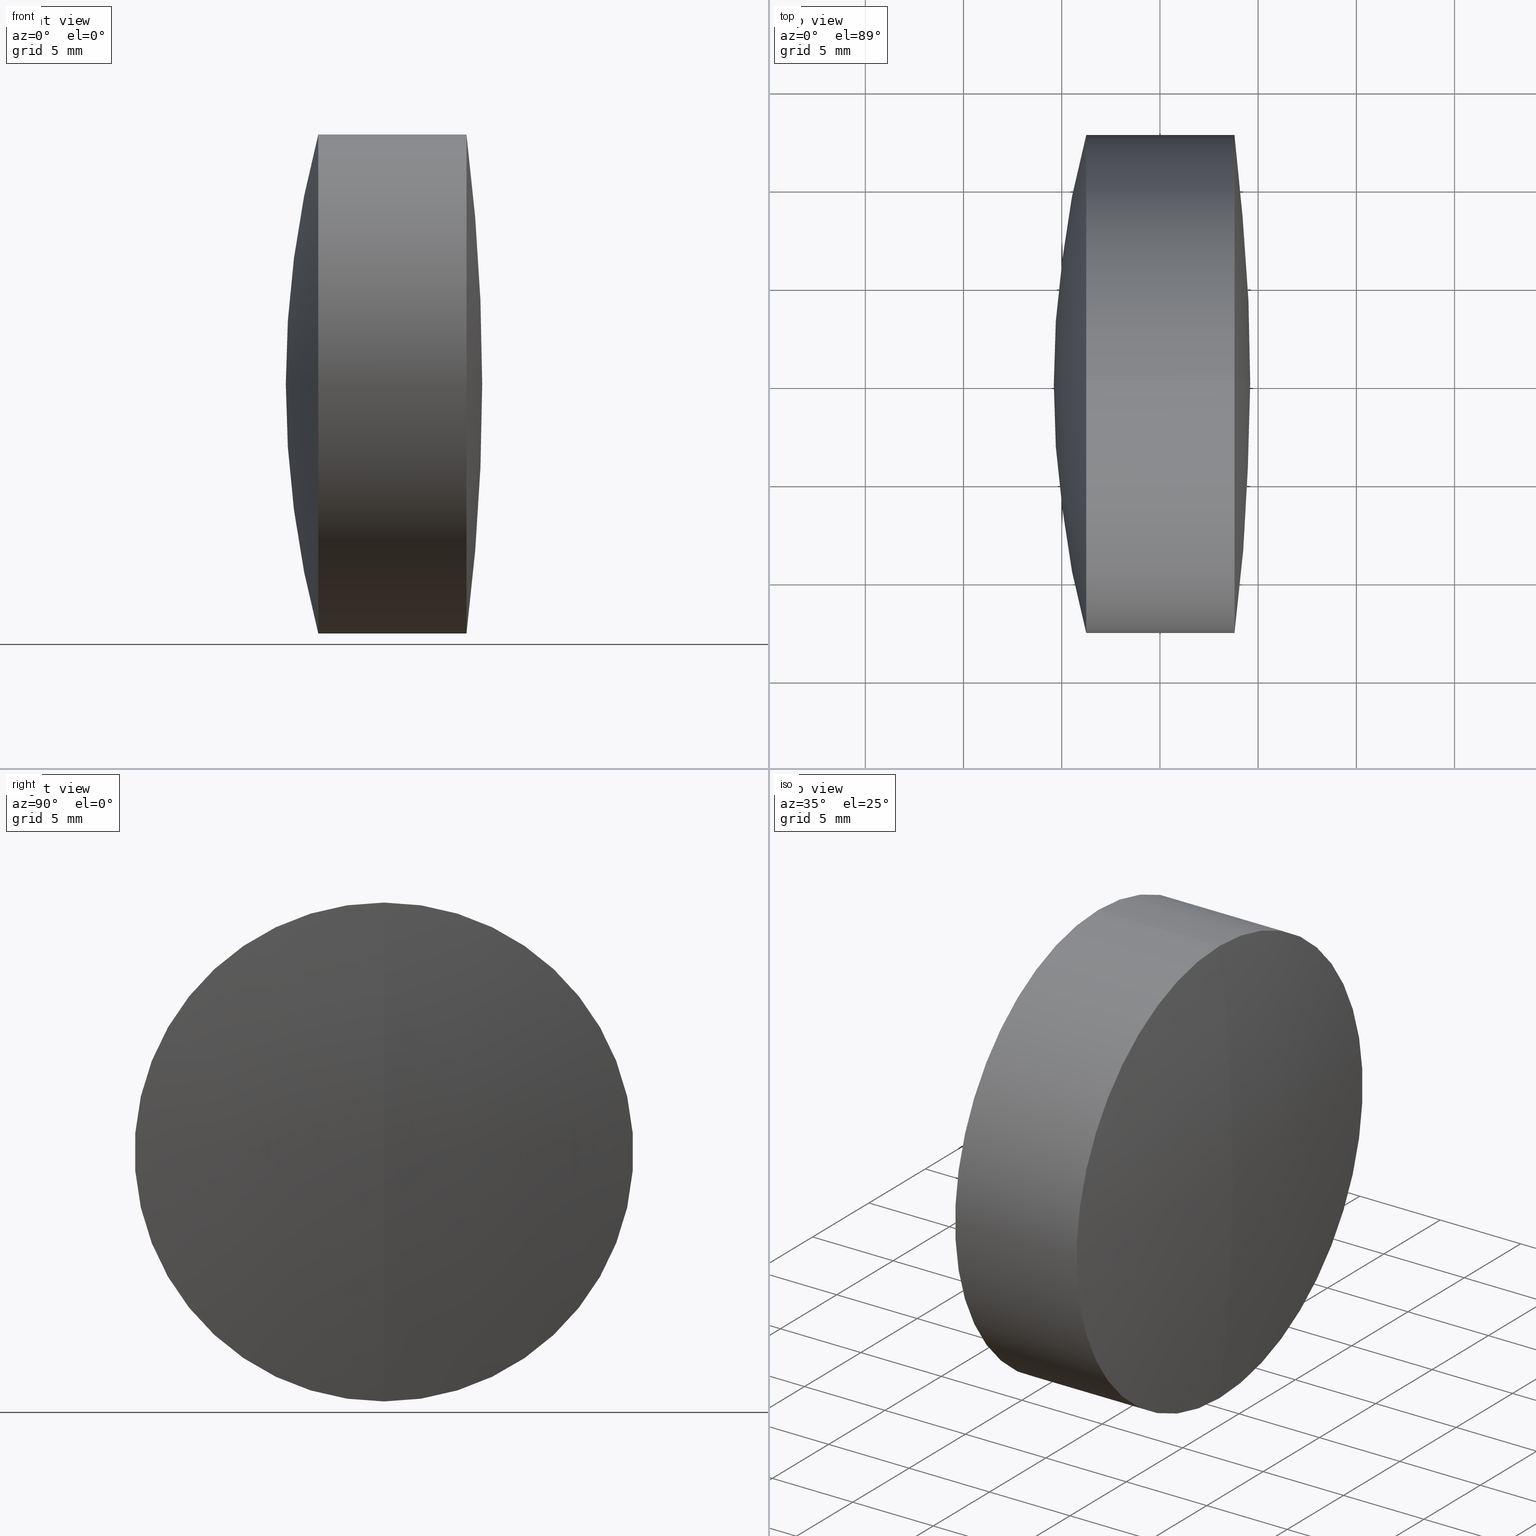
[diagram: canonical four-view strip — front | top / right | iso, engineering-drawing reading convention]
A machine part, canonical four-view strip (front | top / right | iso — engineering-drawing reading convention). The complete STEP part file that produces these views, byte-faithful:
ISO-10303-21;
HEADER;
FILE_DESCRIPTION (( 'STEP AP214' ),
    '1' );
FILE_NAME ('145057.STEP',
    '2019-05-14T02:40:13',
    ( 'user' ),
    ( '΢���й�' ),
    'SwSTEP 2.0',
    'SolidWorks 2016',
    '' );
FILE_SCHEMA (( 'AUTOMOTIVE_DESIGN' ));
ENDSEC;

DATA;
#1 = SPHERICAL_SURFACE ( 'NONE', #47, 101.2000000000000000 ) ;
#2 = ORIENTED_EDGE ( 'NONE', *, *, #287, .T. ) ;
#3 = ADVANCED_FACE ( 'NONE', ( #147 ), #324, .T. ) ;
#4 = CARTESIAN_POINT ( 'NONE',  ( 289.1958458084194500, 0.0000000000000000000, -2.994211294255378400E-015 ) ) ;
#5 = CARTESIAN_POINT ( 'NONE',  ( 249.5958458084194300, 0.0000000000000000000, 6.196712803685607000E-015 ) ) ;
#6 = DIRECTION ( 'NONE',  ( 0.0000000000000000000, -1.224646799147353000E-016, 1.000000000000000000 ) ) ;
#7 = CARTESIAN_POINT ( 'NONE',  ( 289.1958458084194500, 0.0000000000000000000, -2.994211294255378400E-015 ) ) ;
#8 = CARTESIAN_POINT ( 'NONE',  ( 211.0958458084194300, 0.0000000000000000000, -3.185954776904472300E-015 ) ) ;
#9 = VECTOR ( 'NONE', #164, 1000.000000000000000 ) ;
#10 = ORIENTED_EDGE ( 'NONE', *, *, #11, .F. ) ;
#11 = EDGE_CURVE ( 'NONE', #299, #88, #284, .T. ) ;
#12 = DIRECTION ( 'NONE',  ( 0.0000000000000000000, 0.0000000000000000000, -1.000000000000000000 ) ) ;
#13 = DIRECTION ( 'NONE',  ( 0.0000000000000000000, 0.0000000000000000000, -1.000000000000000000 ) ) ;
#14 = DIRECTION ( 'NONE',  ( 0.0000000000000000000, -1.224646799147353200E-016, 1.000000000000000000 ) ) ;
#15 = CIRCLE ( 'NONE', #239, 12.69999999999999900 ) ;
#16 = EDGE_LOOP ( 'NONE', ( #70, #318, #228, #256 ) ) ;
#17 = CARTESIAN_POINT ( 'NONE',  ( 239.5958458084194800, 0.0000000000000000000, 4.291276763005584700E-017 ) ) ;
#18 = AXIS2_PLACEMENT_3D ( 'NONE', #294, #295, #115 ) ;
#19 = SHAPE_DEFINITION_REPRESENTATION ( #87, #165 ) ;
#20 = DIRECTION ( 'NONE',  ( -1.000000000000000000, -0.0000000000000000000, -0.0000000000000000000 ) ) ;
#21 = SPHERICAL_SURFACE ( 'NONE', #195, 35.50000000000001400 ) ;
#22 = ORIENTED_EDGE ( 'NONE', *, *, #173, .T. ) ;
#23 = DIRECTION ( 'NONE',  ( 0.0000000000000000000, 0.0000000000000000000, 1.000000000000000000 ) ) ;
#24 = MECHANICAL_DESIGN_GEOMETRIC_PRESENTATION_REPRESENTATION (  '', ( #327 ), #37 ) ;
#25 = UNCERTAINTY_MEASURE_WITH_UNIT (LENGTH_MEASURE( 1.000000000000000100E-005 ), #215, 'distance_accuracy_value', 'NONE');
#26 = COLOUR_RGB ( '',1.000000000000000000, 1.000000000000000000, 1.000000000000000000 ) ;
#27 = DIRECTION ( 'NONE',  ( 0.0000000000000000000, 0.0000000000000000000, 1.000000000000000000 ) ) ;
#28 = CLOSED_SHELL ( 'NONE', ( #207, #323, #63, #97, #253, #99 ) ) ;
#29 = MECHANICAL_DESIGN_GEOMETRIC_PRESENTATION_REPRESENTATION (  '', ( #49 ), #86 ) ;
#30 = FILL_AREA_STYLE ('',( #104 ) ) ;
#31 = ORIENTED_EDGE ( 'NONE', *, *, #245, .F. ) ;
#32 = DIRECTION ( 'NONE',  ( -0.0000000000000000000, 1.000000000000000000, 1.224646799147353200E-016 ) ) ;
#33 = ORIENTED_EDGE ( 'NONE', *, *, #78, .F. ) ;
#34 = EDGE_CURVE ( 'NONE', #109, #55, #250, .T. ) ;
#35 = ORIENTED_EDGE ( 'NONE', *, *, #96, .T. ) ;
#36 = CARTESIAN_POINT ( 'NONE',  ( 244.2464114144539700, 0.0000000000000000000, 12.69999999999999600 ) ) ;
#37 =( GEOMETRIC_REPRESENTATION_CONTEXT ( 3 ) GLOBAL_UNCERTAINTY_ASSIGNED_CONTEXT ( ( #103 ) ) GLOBAL_UNIT_ASSIGNED_CONTEXT ( ( #38, #187, #273 ) ) REPRESENTATION_CONTEXT ( 'NONE', 'WORKASPACE' ) );
#38 =( LENGTH_UNIT ( ) NAMED_UNIT ( * ) SI_UNIT ( .MILLI., .METRE. ) );
#39 = ORIENTED_EDGE ( 'NONE', *, *, #11, .T. ) ;
#40 = VERTEX_POINT ( 'NONE', #81 ) ;
#41 = EDGE_CURVE ( 'NONE', #332, #109, #335, .T. ) ;
#42 = DIRECTION ( 'NONE',  ( 0.0000000000000000000, 1.000000000000000000, 0.0000000000000000000 ) ) ;
#43 = AXIS2_PLACEMENT_3D ( 'NONE', #7, #304, #128 ) ;
#44 = FACE_OUTER_BOUND ( 'NONE', #95, .T. ) ;
#45 = ORIENTED_EDGE ( 'NONE', *, *, #34, .F. ) ;
#46 = EDGE_CURVE ( 'NONE', #332, #55, #80, .T. ) ;
#47 = AXIS2_PLACEMENT_3D ( 'NONE', #298, #224, #301 ) ;
#48 = VERTEX_POINT ( 'NONE', #133 ) ;
#49 = STYLED_ITEM ( 'NONE', ( #345 ), #302 ) ;
#50 = CIRCLE ( 'NONE', #203, 12.69999999999999600 ) ;
#51 = EDGE_LOOP ( 'NONE', ( #58, #331, #65 ) ) ;
#52 = EDGE_CURVE ( 'NONE', #74, #299, #307, .T. ) ;
#53 = APPLICATION_PROTOCOL_DEFINITION ( 'draft international standard', 'automotive_design', 1998, #232 ) ;
#54 = PRODUCT_DEFINITION ( 'δ֪', '', #117, #193 ) ;
#55 = VERTEX_POINT ( 'NONE', #79 ) ;
#56 = SURFACE_STYLE_FILL_AREA ( #160 ) ;
#57 = CIRCLE ( 'NONE', #18, 35.50000000000001400 ) ;
#58 = ORIENTED_EDGE ( 'NONE', *, *, #157, .F. ) ;
#59 = AXIS2_PLACEMENT_3D ( 'NONE', #339, #306, #23 ) ;
#60 = DIRECTION ( 'NONE',  ( 0.0000000000000000000, -1.000000000000000000, 0.0000000000000000000 ) ) ;
#61 = ORIENTED_EDGE ( 'NONE', *, *, #41, .F. ) ;
#62 = CARTESIAN_POINT ( 'NONE',  ( 161.8331716928335000, 0.0000000000000000000, 0.0000000000000000000 ) ) ;
#63 = ADVANCED_FACE ( 'NONE', ( #204 ), #144, .F. ) ;
#64 = CIRCLE ( 'NONE', #311, 49.59999999999997300 ) ;
#65 = ORIENTED_EDGE ( 'NONE', *, *, #91, .F. ) ;
#66 = LINE ( 'NONE', #156, #269 ) ;
#67 = VECTOR ( 'NONE', #190, 1000.000000000000000 ) ;
#68 = MANIFOLD_SOLID_BREP ( '��ת3', #28 ) ;
#69 = VECTOR ( 'NONE', #20, 1000.000000000000000 ) ;
#70 = ORIENTED_EDGE ( 'NONE', *, *, #118, .T. ) ;
#71 = CARTESIAN_POINT ( 'NONE',  ( 211.0958458084194300, 0.0000000000000000000, -3.185954776904472300E-015 ) ) ;
#72 = DIRECTION ( 'NONE',  ( 0.0000000000000000000, 0.0000000000000000000, 1.000000000000000000 ) ) ;
#73 = DIRECTION ( 'NONE',  ( -1.000000000000000000, -0.0000000000000000000, -0.0000000000000000000 ) ) ;
#74 = VERTEX_POINT ( 'NONE', #188 ) ;
#75 = AXIS2_PLACEMENT_3D ( 'NONE', #201, #27, #176 ) ;
#76 = DIRECTION ( 'NONE',  ( 0.0000000000000000000, 0.0000000000000000000, 1.000000000000000000 ) ) ;
#77 = PRESENTATION_STYLE_ASSIGNMENT (( #218 ) ) ;
#78 = EDGE_CURVE ( 'NONE', #336, #281, #280, .T. ) ;
#79 = CARTESIAN_POINT ( 'NONE',  ( 248.7957960076102500, 0.0000000000000000000, 12.69999999999999900 ) ) ;
#80 = CIRCLE ( 'NONE', #252, 101.2000000000000000 ) ;
#81 = CARTESIAN_POINT ( 'NONE',  ( 246.5958458084194300, 0.0000000000000000000, -1.012206708417919900E-015 ) ) ;
#82 = PRESENTATION_STYLE_ASSIGNMENT (( #214 ) ) ;
#83 = VERTEX_POINT ( 'NONE', #223 ) ;
#84 = CARTESIAN_POINT ( 'NONE',  ( 289.1958458084194500, 0.0000000000000000000, -2.994211294255378400E-015 ) ) ;
#85 = DIRECTION ( 'NONE',  ( -0.0000000000000000000, 1.000000000000000000, 1.224646799147353200E-016 ) ) ;
#86 =( GEOMETRIC_REPRESENTATION_CONTEXT ( 3 ) GLOBAL_UNCERTAINTY_ASSIGNED_CONTEXT ( ( #134 ) ) GLOBAL_UNIT_ASSIGNED_CONTEXT ( ( #261, #346, #121 ) ) REPRESENTATION_CONTEXT ( 'NONE', 'WORKASPACE' ) );
#87 = PRODUCT_DEFINITION_SHAPE ( 'NONE', 'NONE',  #54 ) ;
#88 = VERTEX_POINT ( 'NONE', #17 ) ;
#89 = FACE_OUTER_BOUND ( 'NONE', #148, .T. ) ;
#90 = ORIENTED_EDGE ( 'NONE', *, *, #41, .T. ) ;
#91 = EDGE_CURVE ( 'NONE', #74, #343, #50, .T. ) ;
#92 = DIRECTION ( 'NONE',  ( -1.000000000000000000, -0.0000000000000000000, -0.0000000000000000000 ) ) ;
#93 = SURFACE_SIDE_STYLE ('',( #196 ) ) ;
#94 = CLOSED_SHELL ( 'NONE', ( #169, #3, #263, #212, #319, #310 ) ) ;
#95 = EDGE_LOOP ( 'NONE', ( #325, #242, #22, #33 ) ) ;
#96 = EDGE_CURVE ( 'NONE', #281, #336, #313, .T. ) ;
#97 = ADVANCED_FACE ( 'NONE', ( #113 ), #131, .F. ) ;
#98 = CARTESIAN_POINT ( 'NONE',  ( -0.5519199926577972300, 0.0000000000000000000, 12.69999999999999900 ) ) ;
#99 = ADVANCED_FACE ( 'NONE', ( #220 ), #1, .T. ) ;
#100 =( NAMED_UNIT ( * ) PLANE_ANGLE_UNIT ( ) SI_UNIT ( $, .RADIAN. ) );
#101 = CIRCLE ( 'NONE', #316, 35.50000000000001400 ) ;
#102 = ORIENTED_EDGE ( 'NONE', *, *, #129, .T. ) ;
#103 = UNCERTAINTY_MEASURE_WITH_UNIT (LENGTH_MEASURE( 1.000000000000000100E-005 ), #38, 'distance_accuracy_value', 'NONE');
#104 = FILL_AREA_STYLE_COLOUR ( '', #317 ) ;
#105 = CARTESIAN_POINT ( 'NONE',  ( 211.0958458084194300, 0.0000000000000000000, -3.185954776904472300E-015 ) ) ;
#106 = CARTESIAN_POINT ( 'NONE',  ( 148.3958458084194100, 0.0000000000000000000, 0.0000000000000000000 ) ) ;
#107 = AXIS2_PLACEMENT_3D ( 'NONE', #84, #85, #14 ) ;
#108 = ORIENTED_EDGE ( 'NONE', *, *, #149, .F. ) ;
#109 = VERTEX_POINT ( 'NONE', #305 ) ;
#110 = CARTESIAN_POINT ( 'NONE',  ( 248.7957960076102500, 0.0000000000000000000, 0.0000000000000000000 ) ) ;
#111 = DIRECTION ( 'NONE',  ( -1.000000000000000000, -0.0000000000000000000, -0.0000000000000000000 ) ) ;
#112 = DIRECTION ( 'NONE',  ( 0.0000000000000000000, 0.0000000000000000000, 1.000000000000000000 ) ) ;
#113 = FACE_OUTER_BOUND ( 'NONE', #171, .T. ) ;
#114 = EDGE_LOOP ( 'NONE', ( #2, #143, #167, #175 ) ) ;
#115 = DIRECTION ( 'NONE',  ( 0.0000000000000000000, 0.0000000000000000000, -1.000000000000000000 ) ) ;
#116 = PRESENTATION_LAYER_ASSIGNMENT (  '', '', ( #49 ) ) ;
#117 = PRODUCT_DEFINITION_FORMATION_WITH_SPECIFIED_SOURCE ( '�κ�', '', #233, .NOT_KNOWN. ) ;
#118 = EDGE_CURVE ( 'NONE', #343, #74, #238, .T. ) ;
#119 = FACE_OUTER_BOUND ( 'NONE', #276, .T. ) ;
#120 = ORIENTED_EDGE ( 'NONE', *, *, #118, .F. ) ;
#121 =( NAMED_UNIT ( * ) SI_UNIT ( $, .STERADIAN. ) SOLID_ANGLE_UNIT ( ) );
#122 = DIRECTION ( 'NONE',  ( 0.0000000000000000000, -1.224646799147353000E-016, 1.000000000000000000 ) ) ;
#123 = DIRECTION ( 'NONE',  ( 0.0000000000000000000, 0.0000000000000000000, 1.000000000000000000 ) ) ;
#124 = DIRECTION ( 'NONE',  ( 0.0000000000000000000, 0.0000000000000000000, 1.000000000000000000 ) ) ;
#125 = EDGE_LOOP ( 'NONE', ( #162, #303, #235, #314 ) ) ;
#126 = DIRECTION ( 'NONE',  ( -0.0000000000000000000, 1.000000000000000000, 1.224646799147353200E-016 ) ) ;
#127 =( LENGTH_UNIT ( ) NAMED_UNIT ( * ) SI_UNIT ( .MILLI., .METRE. ) );
#128 = DIRECTION ( 'NONE',  ( 0.0000000000000000000, 0.0000000000000000000, 1.000000000000000000 ) ) ;
#129 = EDGE_CURVE ( 'NONE', #83, #299, #247, .T. ) ;
#130 = CARTESIAN_POINT ( 'NONE',  ( 241.2493130870641400, 1.555301434917139200E-015, -12.70000000000001000 ) ) ;
#131 = SPHERICAL_SURFACE ( 'NONE', #189, 35.50000000000001400 ) ;
#132 = PRODUCT_RELATED_PRODUCT_CATEGORY ( 'part', '', ( #233 ) ) ;
#133 = CARTESIAN_POINT ( 'NONE',  ( 246.5958458084194300, 0.0000000000000000000, -1.012206708417919900E-015 ) ) ;
#134 = UNCERTAINTY_MEASURE_WITH_UNIT (LENGTH_MEASURE( 1.000000000000000100E-005 ), #261, 'distance_accuracy_value', 'NONE');
#135 = APPLICATION_CONTEXT ( 'automotive_design' ) ;
#136 = CARTESIAN_POINT ( 'NONE',  ( 148.3958458084194100, 0.0000000000000000000, 0.0000000000000000000 ) ) ;
#137 = SURFACE_STYLE_USAGE ( .BOTH. , #93 ) ;
#138 = CARTESIAN_POINT ( 'NONE',  ( 161.8331716928335000, 0.0000000000000000000, 12.69999999999999600 ) ) ;
#139 = AXIS2_PLACEMENT_3D ( 'NONE', #106, #42, #123 ) ;
#140 = LINE ( 'NONE', #138, #67 ) ;
#141 = EDGE_LOOP ( 'NONE', ( #31, #177, #264 ) ) ;
#142 = DIRECTION ( 'NONE',  ( 0.0000000000000000000, -1.224646799147353200E-016, 1.000000000000000000 ) ) ;
#143 = ORIENTED_EDGE ( 'NONE', *, *, #265, .T. ) ;
#144 = SPHERICAL_SURFACE ( 'NONE', #206, 35.50000000000001400 ) ;
#145 = CARTESIAN_POINT ( 'NONE',  ( 244.2464114144539700, 0.0000000000000000000, 12.69999999999999600 ) ) ;
#146 = AXIS2_PLACEMENT_3D ( 'NONE', #71, #32, #6 ) ;
#147 = FACE_OUTER_BOUND ( 'NONE', #16, .T. ) ;
#148 = EDGE_LOOP ( 'NONE', ( #293, #90, #170 ) ) ;
#149 = EDGE_CURVE ( 'NONE', #83, #88, #64, .T. ) ;
#150 =( GEOMETRIC_REPRESENTATION_CONTEXT ( 3 ) GLOBAL_UNCERTAINTY_ASSIGNED_CONTEXT ( ( #25 ) ) GLOBAL_UNIT_ASSIGNED_CONTEXT ( ( #215, #217, #219 ) ) REPRESENTATION_CONTEXT ( 'NONE', 'WORKASPACE' ) );
#151 = CARTESIAN_POINT ( 'NONE',  ( 161.8331716928335000, 1.555301434917138000E-015, -12.69999999999999600 ) ) ;
#152 = CARTESIAN_POINT ( 'NONE',  ( 289.1958458084194500, 0.0000000000000000000, -2.994211294255378400E-015 ) ) ;
#153 = CARTESIAN_POINT ( 'NONE',  ( 244.2464114144539700, 1.555301434917138000E-015, -12.69999999999999900 ) ) ;
#154 = DIRECTION ( 'NONE',  ( 0.0000000000000000000, 0.0000000000000000000, -1.000000000000000000 ) ) ;
#155 = SURFACE_STYLE_FILL_AREA ( #197 ) ;
#156 = CARTESIAN_POINT ( 'NONE',  ( -0.5519199926577972300, 1.555301434917138400E-015, -12.69999999999999900 ) ) ;
#157 = EDGE_CURVE ( 'NONE', #48, #74, #191, .T. ) ;
#158 = DIRECTION ( 'NONE',  ( 0.0000000000000000000, 0.0000000000000000000, 1.000000000000000000 ) ) ;
#159 = STYLED_ITEM ( 'NONE', ( #82 ), #68 ) ;
#160 = FILL_AREA_STYLE ('',( #333 ) ) ;
#161 = DIRECTION ( 'NONE',  ( 0.0000000000000000000, -1.000000000000000000, 0.0000000000000000000 ) ) ;
#162 = ORIENTED_EDGE ( 'NONE', *, *, #52, .F. ) ;
#163 = CARTESIAN_POINT ( 'NONE',  ( 148.3958458084194100, 0.0000000000000000000, 0.0000000000000000000 ) ) ;
#164 = DIRECTION ( 'NONE',  ( -1.000000000000000000, -0.0000000000000000000, -0.0000000000000000000 ) ) ;
#165 = ADVANCED_BREP_SHAPE_REPRESENTATION ( '145057', ( #302, #68, #75 ), #268 ) ;
#166 = SPHERICAL_SURFACE ( 'NONE', #59, 35.50000000000001400 ) ;
#167 = ORIENTED_EDGE ( 'NONE', *, *, #96, .F. ) ;
#168 = CARTESIAN_POINT ( 'NONE',  ( 211.0958458084194300, 0.0000000000000000000, -3.185954776904472300E-015 ) ) ;
#169 = ADVANCED_FACE ( 'NONE', ( #119 ), #166, .T. ) ;
#170 = ORIENTED_EDGE ( 'NONE', *, *, #287, .F. ) ;
#171 = EDGE_LOOP ( 'NONE', ( #251, #231, #35 ) ) ;
#172 = AXIS2_PLACEMENT_3D ( 'NONE', #227, #236, #221 ) ;
#173 = EDGE_CURVE ( 'NONE', #55, #281, #209, .T. ) ;
#174 = SPHERICAL_SURFACE ( 'NONE', #43, 49.59999999999997300 ) ;
#175 = ORIENTED_EDGE ( 'NONE', *, *, #173, .F. ) ;
#176 = DIRECTION ( 'NONE',  ( 1.000000000000000000, 0.0000000000000000000, 0.0000000000000000000 ) ) ;
#177 = ORIENTED_EDGE ( 'NONE', *, *, #183, .T. ) ;
#178 = DIRECTION ( 'NONE',  ( 0.0000000000000000000, 1.000000000000000000, 0.0000000000000000000 ) ) ;
#179 = FACE_OUTER_BOUND ( 'NONE', #114, .T. ) ;
#180 = SPHERICAL_SURFACE ( 'NONE', #184, 49.59999999999997300 ) ;
#181 = ORIENTED_EDGE ( 'NONE', *, *, #234, .F. ) ;
#182 = DIRECTION ( 'NONE',  ( 0.0000000000000000000, -1.000000000000000000, 0.0000000000000000000 ) ) ;
#183 = EDGE_CURVE ( 'NONE', #40, #336, #101, .T. ) ;
#184 = AXIS2_PLACEMENT_3D ( 'NONE', #152, #185, #158 ) ;
#185 = DIRECTION ( 'NONE',  ( 0.0000000000000000000, 1.000000000000000000, 0.0000000000000000000 ) ) ;
#186 = DIRECTION ( 'NONE',  ( 0.0000000000000000000, 0.0000000000000000000, 1.000000000000000000 ) ) ;
#187 =( NAMED_UNIT ( * ) PLANE_ANGLE_UNIT ( ) SI_UNIT ( $, .RADIAN. ) );
#188 = CARTESIAN_POINT ( 'NONE',  ( 244.2464114144539700, 1.555301434917138000E-015, -12.69999999999999600 ) ) ;
#189 = AXIS2_PLACEMENT_3D ( 'NONE', #249, #274, #246 ) ;
#190 = DIRECTION ( 'NONE',  ( -1.000000000000000000, -0.0000000000000000000, -0.0000000000000000000 ) ) ;
#191 = CIRCLE ( 'NONE', #146, 35.50000000000001400 ) ;
#192 = ORIENTED_EDGE ( 'NONE', *, *, #157, .T. ) ;
#193 = PRODUCT_DEFINITION_CONTEXT ( 'detailed design', #232, 'design' ) ;
#194 = FILL_AREA_STYLE_COLOUR ( '', #26 ) ;
#195 = AXIS2_PLACEMENT_3D ( 'NONE', #8, #208, #230 ) ;
#196 = SURFACE_STYLE_FILL_AREA ( #30 ) ;
#197 = FILL_AREA_STYLE ('',( #194 ) ) ;
#198 = UNCERTAINTY_MEASURE_WITH_UNIT (LENGTH_MEASURE( 1.000000000000000100E-005 ), #127, 'distance_accuracy_value', 'NONE');
#199 = CIRCLE ( 'NONE', #258, 35.50000000000001400 ) ;
#200 = EDGE_LOOP ( 'NONE', ( #61, #312, #45 ) ) ;
#201 = CARTESIAN_POINT ( 'NONE',  ( 0.0000000000000000000, 0.0000000000000000000, 0.0000000000000000000 ) ) ;
#202 = CYLINDRICAL_SURFACE ( 'NONE', #286, 12.69999999999999900 ) ;
#203 = AXIS2_PLACEMENT_3D ( 'NONE', #266, #271, #272 ) ;
#204 = FACE_OUTER_BOUND ( 'NONE', #141, .T. ) ;
#205 = DIRECTION ( 'NONE',  ( -1.000000000000000000, -0.0000000000000000000, -0.0000000000000000000 ) ) ;
#206 = AXIS2_PLACEMENT_3D ( 'NONE', #168, #178, #186 ) ;
#207 = ADVANCED_FACE ( 'NONE', ( #89 ), #292, .T. ) ;
#208 = DIRECTION ( 'NONE',  ( 0.0000000000000000000, 1.000000000000000000, 0.0000000000000000000 ) ) ;
#209 = LINE ( 'NONE', #98, #69 ) ;
#210 = EDGE_LOOP ( 'NONE', ( #10, #255, #308 ) ) ;
#211 = SURFACE_SIDE_STYLE ('',( #155 ) ) ;
#212 = ADVANCED_FACE ( 'NONE', ( #342 ), #180, .T. ) ;
#213 = CARTESIAN_POINT ( 'NONE',  ( 211.0958458084194300, 0.0000000000000000000, -3.185954776904472300E-015 ) ) ;
#214 = SURFACE_STYLE_USAGE ( .BOTH. , #211 ) ;
#215 =( LENGTH_UNIT ( ) NAMED_UNIT ( * ) SI_UNIT ( .MILLI., .METRE. ) );
#216 = EDGE_CURVE ( 'NONE', #343, #83, #140, .T. ) ;
#217 =( NAMED_UNIT ( * ) PLANE_ANGLE_UNIT ( ) SI_UNIT ( $, .RADIAN. ) );
#218 = SURFACE_STYLE_USAGE ( .BOTH. , #243 ) ;
#219 =( NAMED_UNIT ( * ) SI_UNIT ( $, .STERADIAN. ) SOLID_ANGLE_UNIT ( ) );
#220 = FACE_OUTER_BOUND ( 'NONE', #200, .T. ) ;
#221 = DIRECTION ( 'NONE',  ( 0.0000000000000000000, 0.0000000000000000000, 1.000000000000000000 ) ) ;
#222 = FACE_OUTER_BOUND ( 'NONE', #125, .T. ) ;
#223 = CARTESIAN_POINT ( 'NONE',  ( 241.2493130870641400, 0.0000000000000000000, 12.70000000000000600 ) ) ;
#224 = DIRECTION ( 'NONE',  ( 0.0000000000000000000, 1.000000000000000000, 0.0000000000000000000 ) ) ;
#225 = EDGE_CURVE ( 'NONE', #299, #83, #275, .T. ) ;
#226 = AXIS2_PLACEMENT_3D ( 'NONE', #110, #111, #112 ) ;
#227 = CARTESIAN_POINT ( 'NONE',  ( 241.2493130870641400, 0.0000000000000000000, 0.0000000000000000000 ) ) ;
#228 = ORIENTED_EDGE ( 'NONE', *, *, #129, .F. ) ;
#229 = AXIS2_PLACEMENT_3D ( 'NONE', #334, #337, #338 ) ;
#230 = DIRECTION ( 'NONE',  ( 0.0000000000000000000, 0.0000000000000000000, 1.000000000000000000 ) ) ;
#231 = ORIENTED_EDGE ( 'NONE', *, *, #245, .T. ) ;
#232 = APPLICATION_CONTEXT ( 'automotive_design' ) ;
#233 = PRODUCT ( '145057', '145057', '', ( #344 ) ) ;
#234 = EDGE_CURVE ( 'NONE', #48, #343, #199, .T. ) ;
#235 = ORIENTED_EDGE ( 'NONE', *, *, #216, .T. ) ;
#236 = DIRECTION ( 'NONE',  ( -1.000000000000000000, -0.0000000000000000000, -0.0000000000000000000 ) ) ;
#237 = APPLICATION_PROTOCOL_DEFINITION ( 'draft international standard', 'automotive_design', 1998, #135 ) ;
#238 = CIRCLE ( 'NONE', #321, 12.69999999999999600 ) ;
#239 = AXIS2_PLACEMENT_3D ( 'NONE', #300, #267, #72 ) ;
#240 = CARTESIAN_POINT ( 'NONE',  ( 244.2464114144539700, 0.0000000000000000000, 0.0000000000000000000 ) ) ;
#241 = DIRECTION ( 'NONE',  ( -1.000000000000000000, -0.0000000000000000000, -0.0000000000000000000 ) ) ;
#242 = ORIENTED_EDGE ( 'NONE', *, *, #34, .T. ) ;
#243 = SURFACE_SIDE_STYLE ('',( #56 ) ) ;
#244 = DIRECTION ( 'NONE',  ( 0.0000000000000000000, 0.0000000000000000000, 1.000000000000000000 ) ) ;
#245 = EDGE_CURVE ( 'NONE', #40, #281, #57, .T. ) ;
#246 = DIRECTION ( 'NONE',  ( 0.0000000000000000000, 0.0000000000000000000, 1.000000000000000000 ) ) ;
#247 = CIRCLE ( 'NONE', #229, 12.69999999999999600 ) ;
#248 = AXIS2_PLACEMENT_3D ( 'NONE', #315, #92, #124 ) ;
#249 = CARTESIAN_POINT ( 'NONE',  ( 211.0958458084194300, 0.0000000000000000000, -3.185954776904472300E-015 ) ) ;
#250 = CIRCLE ( 'NONE', #226, 12.69999999999999900 ) ;
#251 = ORIENTED_EDGE ( 'NONE', *, *, #183, .F. ) ;
#252 = AXIS2_PLACEMENT_3D ( 'NONE', #163, #161, #154 ) ;
#253 = ADVANCED_FACE ( 'NONE', ( #44 ), #202, .T. ) ;
#254 = COLOUR_RGB ( '',1.000000000000000000, 1.000000000000000000, 1.000000000000000000 ) ;
#255 = ORIENTED_EDGE ( 'NONE', *, *, #225, .T. ) ;
#256 = ORIENTED_EDGE ( 'NONE', *, *, #216, .F. ) ;
#257 = CARTESIAN_POINT ( 'NONE',  ( -0.5519199926577972300, 0.0000000000000000000, 0.0000000000000000000 ) ) ;
#258 = AXIS2_PLACEMENT_3D ( 'NONE', #213, #182, #12 ) ;
#259 = DIRECTION ( 'NONE',  ( -1.000000000000000000, -0.0000000000000000000, -0.0000000000000000000 ) ) ;
#260 = CYLINDRICAL_SURFACE ( 'NONE', #309, 12.69999999999999900 ) ;
#261 =( LENGTH_UNIT ( ) NAMED_UNIT ( * ) SI_UNIT ( .MILLI., .METRE. ) );
#262 = AXIS2_PLACEMENT_3D ( 'NONE', #136, #126, #142 ) ;
#263 = ADVANCED_FACE ( 'NONE', ( #289 ), #174, .T. ) ;
#264 = ORIENTED_EDGE ( 'NONE', *, *, #78, .T. ) ;
#265 = EDGE_CURVE ( 'NONE', #109, #336, #66, .T. ) ;
#266 = CARTESIAN_POINT ( 'NONE',  ( 244.2464114144539700, 0.0000000000000000000, 0.0000000000000000000 ) ) ;
#267 = DIRECTION ( 'NONE',  ( -1.000000000000000000, -0.0000000000000000000, -0.0000000000000000000 ) ) ;
#268 =( GEOMETRIC_REPRESENTATION_CONTEXT ( 3 ) GLOBAL_UNCERTAINTY_ASSIGNED_CONTEXT ( ( #198 ) ) GLOBAL_UNIT_ASSIGNED_CONTEXT ( ( #127, #100, #297 ) ) REPRESENTATION_CONTEXT ( 'NONE', 'WORKASPACE' ) );
#269 = VECTOR ( 'NONE', #322, 1000.000000000000000 ) ;
#270 = CARTESIAN_POINT ( 'NONE',  ( -0.5519199926577972300, 0.0000000000000000000, 0.0000000000000000000 ) ) ;
#271 = DIRECTION ( 'NONE',  ( -1.000000000000000000, -0.0000000000000000000, -0.0000000000000000000 ) ) ;
#272 = DIRECTION ( 'NONE',  ( 0.0000000000000000000, 0.0000000000000000000, 1.000000000000000000 ) ) ;
#273 =( NAMED_UNIT ( * ) SI_UNIT ( $, .STERADIAN. ) SOLID_ANGLE_UNIT ( ) );
#274 = DIRECTION ( 'NONE',  ( 0.0000000000000000000, 1.000000000000000000, 0.0000000000000000000 ) ) ;
#275 = CIRCLE ( 'NONE', #172, 12.69999999999999600 ) ;
#276 = EDGE_LOOP ( 'NONE', ( #181, #192, #120 ) ) ;
#277 = CARTESIAN_POINT ( 'NONE',  ( 244.2464114144539700, 0.0000000000000000000, 0.0000000000000000000 ) ) ;
#278 = DIRECTION ( 'NONE',  ( -1.000000000000000000, -0.0000000000000000000, -0.0000000000000000000 ) ) ;
#279 = DIRECTION ( 'NONE',  ( 0.0000000000000000000, 0.0000000000000000000, 1.000000000000000000 ) ) ;
#280 = CIRCLE ( 'NONE', #340, 12.69999999999999800 ) ;
#281 = VERTEX_POINT ( 'NONE', #36 ) ;
#282 = AXIS2_PLACEMENT_3D ( 'NONE', #277, #278, #283 ) ;
#283 = DIRECTION ( 'NONE',  ( 0.0000000000000000000, 0.0000000000000000000, 1.000000000000000000 ) ) ;
#284 = CIRCLE ( 'NONE', #107, 49.59999999999997300 ) ;
#285 = EDGE_LOOP ( 'NONE', ( #102, #39, #108 ) ) ;
#286 = AXIS2_PLACEMENT_3D ( 'NONE', #270, #205, #279 ) ;
#287 = EDGE_CURVE ( 'NONE', #55, #109, #15, .T. ) ;
#288 = DIRECTION ( 'NONE',  ( 0.0000000000000000000, 0.0000000000000000000, 1.000000000000000000 ) ) ;
#289 = FACE_OUTER_BOUND ( 'NONE', #285, .T. ) ;
#290 = PRESENTATION_LAYER_ASSIGNMENT (  '', '', ( #327 ) ) ;
#291 = MECHANICAL_DESIGN_GEOMETRIC_PRESENTATION_REPRESENTATION (  '', ( #159 ), #150 ) ;
#292 = SPHERICAL_SURFACE ( 'NONE', #139, 101.2000000000000000 ) ;
#293 = ORIENTED_EDGE ( 'NONE', *, *, #46, .F. ) ;
#294 = CARTESIAN_POINT ( 'NONE',  ( 211.0958458084194300, 0.0000000000000000000, -3.185954776904472300E-015 ) ) ;
#295 = DIRECTION ( 'NONE',  ( 0.0000000000000000000, -1.000000000000000000, 0.0000000000000000000 ) ) ;
#296 = CYLINDRICAL_SURFACE ( 'NONE', #248, 12.69999999999999600 ) ;
#297 =( NAMED_UNIT ( * ) SI_UNIT ( $, .STERADIAN. ) SOLID_ANGLE_UNIT ( ) );
#298 = CARTESIAN_POINT ( 'NONE',  ( 148.3958458084194100, 0.0000000000000000000, 0.0000000000000000000 ) ) ;
#299 = VERTEX_POINT ( 'NONE', #130 ) ;
#300 = CARTESIAN_POINT ( 'NONE',  ( 248.7957960076102500, 0.0000000000000000000, 0.0000000000000000000 ) ) ;
#301 = DIRECTION ( 'NONE',  ( 0.0000000000000000000, 0.0000000000000000000, 1.000000000000000000 ) ) ;
#302 = MANIFOLD_SOLID_BREP ( '��ת1', #94 ) ;
#303 = ORIENTED_EDGE ( 'NONE', *, *, #91, .T. ) ;
#304 = DIRECTION ( 'NONE',  ( 0.0000000000000000000, 1.000000000000000000, 0.0000000000000000000 ) ) ;
#305 = CARTESIAN_POINT ( 'NONE',  ( 248.7957960076102500, 1.555301434917138400E-015, -12.69999999999999900 ) ) ;
#306 = DIRECTION ( 'NONE',  ( 0.0000000000000000000, 1.000000000000000000, 0.0000000000000000000 ) ) ;
#307 = LINE ( 'NONE', #151, #9 ) ;
#308 = ORIENTED_EDGE ( 'NONE', *, *, #149, .T. ) ;
#309 = AXIS2_PLACEMENT_3D ( 'NONE', #257, #259, #288 ) ;
#310 = ADVANCED_FACE ( 'NONE', ( #328 ), #21, .T. ) ;
#311 = AXIS2_PLACEMENT_3D ( 'NONE', #4, #60, #13 ) ;
#312 = ORIENTED_EDGE ( 'NONE', *, *, #46, .T. ) ;
#313 = CIRCLE ( 'NONE', #282, 12.69999999999999800 ) ;
#314 = ORIENTED_EDGE ( 'NONE', *, *, #225, .F. ) ;
#315 = CARTESIAN_POINT ( 'NONE',  ( 161.8331716928335000, 0.0000000000000000000, 0.0000000000000000000 ) ) ;
#316 = AXIS2_PLACEMENT_3D ( 'NONE', #105, #326, #122 ) ;
#317 = COLOUR_RGB ( '',1.000000000000000000, 1.000000000000000000, 1.000000000000000000 ) ;
#318 = ORIENTED_EDGE ( 'NONE', *, *, #52, .T. ) ;
#319 = ADVANCED_FACE ( 'NONE', ( #222 ), #296, .T. ) ;
#320 = CARTESIAN_POINT ( 'NONE',  ( 244.2464114144539700, 0.0000000000000000000, 0.0000000000000000000 ) ) ;
#321 = AXIS2_PLACEMENT_3D ( 'NONE', #320, #329, #330 ) ;
#322 = DIRECTION ( 'NONE',  ( -1.000000000000000000, -0.0000000000000000000, -0.0000000000000000000 ) ) ;
#323 = ADVANCED_FACE ( 'NONE', ( #179 ), #260, .T. ) ;
#324 = CYLINDRICAL_SURFACE ( 'NONE', #347, 12.69999999999999600 ) ;
#325 = ORIENTED_EDGE ( 'NONE', *, *, #265, .F. ) ;
#326 = DIRECTION ( 'NONE',  ( -0.0000000000000000000, 1.000000000000000000, 1.224646799147353200E-016 ) ) ;
#327 = STYLED_ITEM ( 'NONE', ( #77 ), #165 ) ;
#328 = FACE_OUTER_BOUND ( 'NONE', #51, .T. ) ;
#329 = DIRECTION ( 'NONE',  ( -1.000000000000000000, -0.0000000000000000000, -0.0000000000000000000 ) ) ;
#330 = DIRECTION ( 'NONE',  ( 0.0000000000000000000, 0.0000000000000000000, 1.000000000000000000 ) ) ;
#331 = ORIENTED_EDGE ( 'NONE', *, *, #234, .T. ) ;
#332 = VERTEX_POINT ( 'NONE', #5 ) ;
#333 = FILL_AREA_STYLE_COLOUR ( '', #254 ) ;
#334 = CARTESIAN_POINT ( 'NONE',  ( 241.2493130870641400, 0.0000000000000000000, 0.0000000000000000000 ) ) ;
#335 = CIRCLE ( 'NONE', #262, 101.2000000000000000 ) ;
#336 = VERTEX_POINT ( 'NONE', #153 ) ;
#337 = DIRECTION ( 'NONE',  ( -1.000000000000000000, -0.0000000000000000000, -0.0000000000000000000 ) ) ;
#338 = DIRECTION ( 'NONE',  ( 0.0000000000000000000, 0.0000000000000000000, 1.000000000000000000 ) ) ;
#339 = CARTESIAN_POINT ( 'NONE',  ( 211.0958458084194300, 0.0000000000000000000, -3.185954776904472300E-015 ) ) ;
#340 = AXIS2_PLACEMENT_3D ( 'NONE', #240, #241, #244 ) ;
#341 = PRESENTATION_LAYER_ASSIGNMENT (  '', '', ( #159 ) ) ;
#342 = FACE_OUTER_BOUND ( 'NONE', #210, .T. ) ;
#343 = VERTEX_POINT ( 'NONE', #145 ) ;
#344 = PRODUCT_CONTEXT ( 'NONE', #135, 'mechanical' ) ;
#345 = PRESENTATION_STYLE_ASSIGNMENT (( #137 ) ) ;
#346 =( NAMED_UNIT ( * ) PLANE_ANGLE_UNIT ( ) SI_UNIT ( $, .RADIAN. ) );
#347 = AXIS2_PLACEMENT_3D ( 'NONE', #62, #73, #76 ) ;
ENDSEC;
END-ISO-10303-21;
